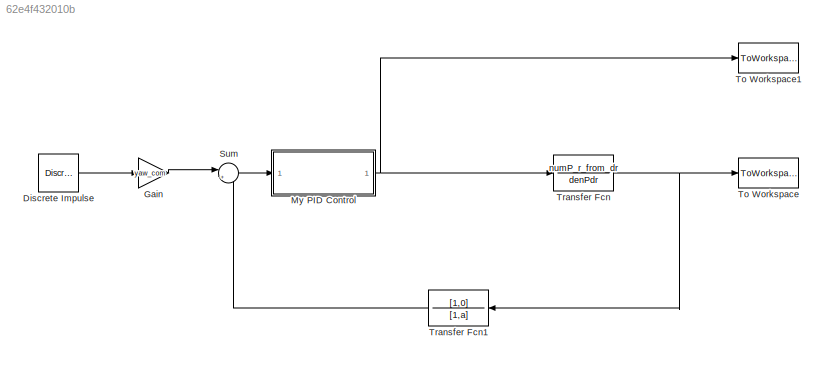
MODEL slx_62e4f432010b
KIND model
CONFIG AbsTol = auto
CONFIG FixedStep = auto
CONFIG MaxStep = auto
CONFIG MinStep = auto
CONFIG RelTol = 1e-3
CONFIG SampleTimeConstraint = Unconstrained
CONFIG Solver = ode45
CONFIG SolverMode = Auto
CONFIG SolverName = ode45
CONFIG StartTime = 0.0
CONFIG StopTime = 10.0
BLOCK [Reference] Discrete Impulse  REF=dspsrcs4/Discrete 
Impulse
  Ports = [0, 1]
  SourceBlock = dspsrcs4/Discrete \nImpulse
  SourceType = Discrete Impulse
BLOCK [Gain] Gain
  Gain = yaw_com
  OutDataTypeStr = Inherit: Inherit via internal rule
  ParamDataTypeStr = Inherit: Inherit via internal rule
  SaturateOnIntegerOverflow = off
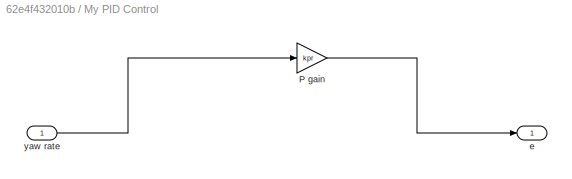
BLOCK [SubSystem] My PID Control
  Ports = [1, 1]
  RequestExecContextInheritance = off
  TreatAsAtomicUnit = on
  Variant = off
BLOCK [Gain] My PID Control/P gain
  Gain = kpr
  OutDataTypeStr = Inherit: Inherit via internal rule
  ParamDataTypeStr = Inherit: Inherit via internal rule
  SaturateOnIntegerOverflow = off
BLOCK [Outport] My PID Control/e
  IconDisplay = Port number
BLOCK [Inport] My PID Control/yaw rate
  IconDisplay = Port number
BLOCK [Sum] Sum
  IconShape = round
  InputSameDT = off
  Inputs = |+-
  OutDataTypeStr = Inherit: Inherit via internal rule
  Ports = [2, 1]
  SaturateOnIntegerOverflow = off
BLOCK [ToWorkspace] To Workspace
  MaxDataPoints = inf
  Ports = [1]
  SampleTime = -1
  SaveFormat = Timeseries
  VariableName = yaw_rate
BLOCK [ToWorkspace] To Workspace1
  MaxDataPoints = inf
  Ports = [1]
  SampleTime = -1
  SaveFormat = Timeseries
  VariableName = rudder
BLOCK [TransferFcn] Transfer Fcn
  Denominator = denPdr
  Numerator = numP_r_from_dr
BLOCK [TransferFcn] Transfer Fcn1
  Denominator = [1,a]
  Numerator = [1,0]
LINE Discrete Impulse:1 -> Gain:1
LINE Gain:1 -> Sum:1
LINE My PID Control/P gain:1 -> My PID Control/e:1
LINE My PID Control/yaw rate:1 -> My PID Control/P gain:1
NET My PID Control:1 -> To Workspace1:1, Transfer Fcn:1
LINE Sum:1 -> My PID Control:1
LINE Transfer Fcn1:1 -> Sum:2
NET Transfer Fcn:1 -> To Workspace:1, Transfer Fcn1:1
note: NET lines group one-source signal fan-out (src -> all destinations, sorted); 1:1 wires keep LINE
